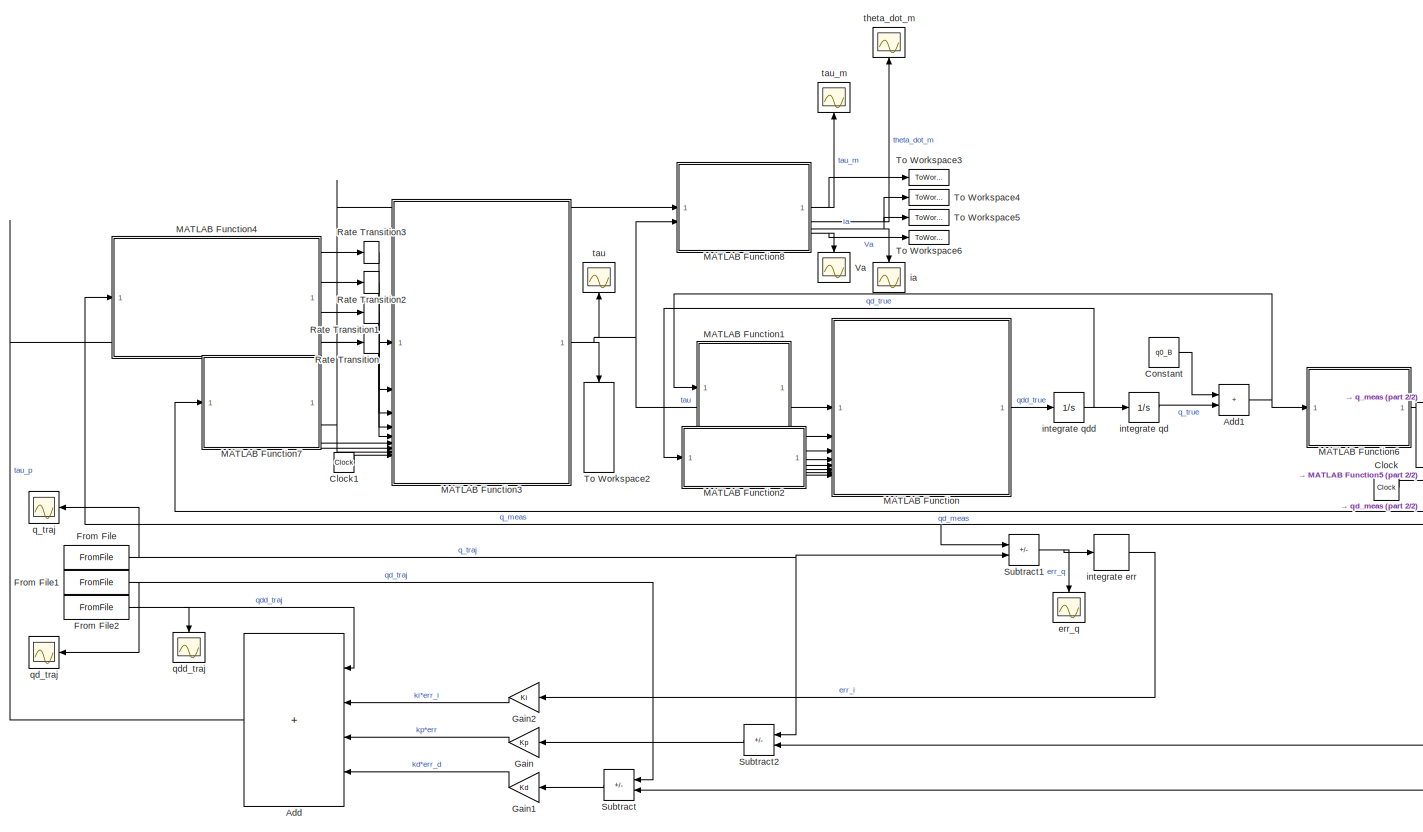
[diagram: root canvas - part 1/2, most of the canvas]
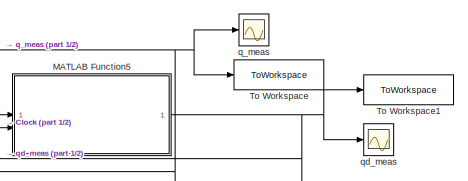
[diagram: root canvas - part 2/2, middle right region]
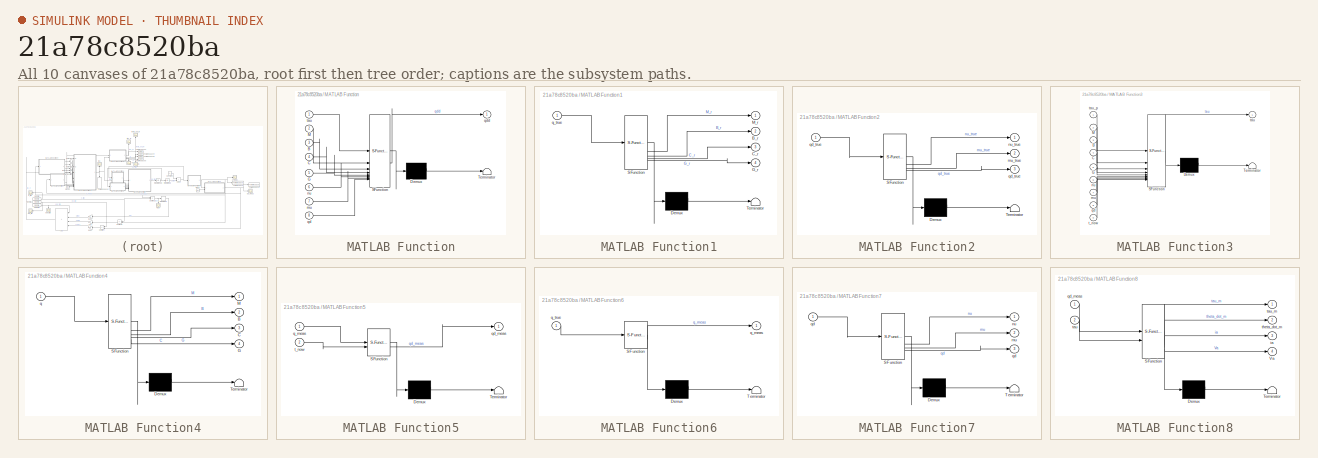
[diagram: thumbnail index - all 10 canvases of the model, root first then tree order]
MODEL slx_21a78c8520ba
KIND model
CONFIG AbsTol = auto
CONFIG EnableMultiTasking = off
CONFIG FixedStep = t_sim
CONFIG MaxStep = auto
CONFIG MinStep = auto
CONFIG RelTol = 1e-3
CONFIG SampleTimeConstraint = Unconstrained
CONFIG SolverName = ode4
CONFIG StartTime = T_in_sim_B
CONFIG StopTime = T_sim_B
WORKSPACE source: mxarray member
WORKSPACE A_c = [1 1 1 1 1]
WORKSPACE A_v = [0.146 0 0 0 0 0 0.146 0 0 0 0 0 ... (25 elements, 5x5)]
WORKSPACE DELTA = [0.00153398078789 0.00153398078789 0.00153398078789 0.00153398078789 0.00153398078789]
WORKSPACE K = 5
WORKSPACE Kd = [4 0 0 0 0 0 4 0 0 0 0 0 ... (25 elements, 5x5)]
WORKSPACE Ki = [28 0 0 0 0 0 28 0 0 0 0 0 ... (25 elements, 5x5)]
WORKSPACE Kp = [21 0 0 0 0 0 21 0 0 0 0 0 ... (25 elements, 5x5)]
WORKSPACE M_m = [0.54 0 0 0 0 0 0.54 0 0 0 0 0 ... (25 elements, 5x5)]
WORKSPACE Ra = [0.103 0.103 0.103 0.103 0.103]
WORKSPACE T_c = 0.01
WORKSPACE T_gt = 0.005
WORKSPACE T_in_sim_A = 0
WORKSPACE T_in_sim_B = 25.02
WORKSPACE T_moto_A = 9.56
WORKSPACE T_moto_B = 34.085
WORKSPACE T_s = 0.01
WORKSPACE T_sim_A = 25.015
WORKSPACE T_sim_B = 48.735
WORKSPACE T_u = 0.02
WORKSPACE f_c = 50
WORKSPACE f_gt = 200
WORKSPACE f_s = 100
WORKSPACE f_u = 50
WORKSPACE gear_ratio = [100 100 100 100 100]
WORKSPACE kd = 4
WORKSPACE ke = [0.0385 0.0385 0.0385 0.0385 0.0385]
WORKSPACE ki = 28
WORKSPACE km = [0.0385 0.0385 0.0385 0.0385 0.0385]
WORKSPACE kp = 21
WORKSPACE q0_A = [0 -2.4435 1.5708 1.5708 1.5708]
WORKSPACE q0_B = [3.82862160983e-16 -0.562806100915 2.41996424612 -0.534908886278 0.248547067871]
WORKSPACE qd0_A = [0 0 0 0 0]
WORKSPACE qd0_B = [0 0 0 0 0]
WORKSPACE qdd0_A = [2.20373308525e-17 0.108251684053 0.0488774168534 -0.121203420277 -0.0761081357875]
WORKSPACE qdd0_B = [-4.87408370682e-17 0.121203420277 -0.0531243011007 0.0781005207217 0.054950573486]
WORKSPACE t_LPF = 10
WORKSPACE t_const = 0.02
WORKSPACE t_fade = 0.5
WORKSPACE t_sim = 0.005
BLOCK [Sum] Add
  IconShape = rectangular
  Inputs = ++++
  NameLocation = top
BLOCK [Sum] Add1
  IconShape = rectangular
BLOCK [Clock] Clock
BLOCK [Clock] Clock1
BLOCK [Constant] Constant
  Value = q0_B
BLOCK [FromFile] From File
  FileName = q_trajB.mat
  SampleTime = T_gt
BLOCK [FromFile] From File1
  FileName = dq_trajB.mat
  SampleTime = T_gt
BLOCK [FromFile] From File2
  FileName = ddq_trajB.mat
  SampleTime = T_gt
BLOCK [Gain] Gain
  Gain = Kp
  Multiplication = Matrix(K*u) (u vector)
BLOCK [Gain] Gain1
  Gain = Kd
  Multiplication = Matrix(K*u) (u vector)
BLOCK [Gain] Gain2
  Gain = Ki
  Multiplication = Matrix(K*u) (u vector)
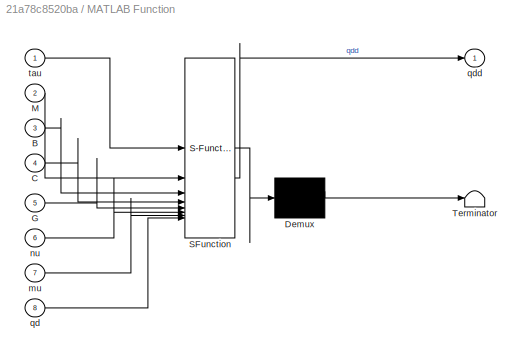
BLOCK [SubSystem] MATLAB Function
  ErrorFcn = Stateflow.Translate.translate
  PermitHierarchicalResolution = ExplicitOnly
  SFBlockType = MATLAB Function
  TreatAsAtomicUnit = on
BLOCK [Demux] MATLAB Function/ Demux 
  Outputs = 1
BLOCK [S-Function] MATLAB Function/ SFunction 
  EnableBusSupport = on
  FunctionName = sf_sfun
  Parameters = A_c,A_v,M_m
  PortCounts = [8 2]
  SFcnIsStateOwnerBlock = off
  SFunctionDeploymentMode = off
  Tag = Stateflow S-Function 2
BLOCK [Terminator] MATLAB Function/ Terminator 
BLOCK [Inport] MATLAB Function/B
  Port = 3
BLOCK [Inport] MATLAB Function/C
  Port = 4
BLOCK [Inport] MATLAB Function/G
  Port = 5
BLOCK [Inport] MATLAB Function/M
  Port = 2
BLOCK [Inport] MATLAB Function/mu
  Port = 7
BLOCK [Inport] MATLAB Function/nu
  Port = 6
BLOCK [Inport] MATLAB Function/qd
  Port = 8
BLOCK [Outport] MATLAB Function/qdd
BLOCK [Inport] MATLAB Function/tau
BLOCK [SubSystem] MATLAB Function1
  ErrorFcn = Stateflow.Translate.translate
  PermitHierarchicalResolution = ExplicitOnly
  SFBlockType = MATLAB Function
  TreatAsAtomicUnit = on
BLOCK [Demux] MATLAB Function1/ Demux 
  Outputs = 1
BLOCK [S-Function] MATLAB Function1/ SFunction 
  EnableBusSupport = on
  FunctionName = sf_sfun
  PortCounts = [1 5]
  SFcnIsStateOwnerBlock = off
  SFunctionDeploymentMode = off
  Tag = Stateflow S-Function 1
BLOCK [Terminator] MATLAB Function1/ Terminator 
BLOCK [Outport] MATLAB Function1/B_r
  Port = 2
BLOCK [Outport] MATLAB Function1/C_r
  Port = 3
BLOCK [Outport] MATLAB Function1/G_r
  Port = 4
BLOCK [Outport] MATLAB Function1/M_r
BLOCK [Inport] MATLAB Function1/q_true
BLOCK [SubSystem] MATLAB Function2
  ErrorFcn = Stateflow.Translate.translate
  PermitHierarchicalResolution = ExplicitOnly
  SFBlockType = MATLAB Function
  TreatAsAtomicUnit = on
BLOCK [Demux] MATLAB Function2/ Demux 
  Outputs = 1
BLOCK [S-Function] MATLAB Function2/ SFunction 
  EnableBusSupport = on
  FunctionName = sf_sfun
  PortCounts = [1 4]
  SFcnIsStateOwnerBlock = off
  SFunctionDeploymentMode = off
  Tag = Stateflow S-Function 3
BLOCK [Terminator] MATLAB Function2/ Terminator 
BLOCK [Outport] MATLAB Function2/mu_true
  Port = 2
BLOCK [Outport] MATLAB Function2/nu_true
BLOCK [Outport] MATLAB Function2/qd_true
  Port = 3
BLOCK [Inport] MATLAB Function2/qd_true 
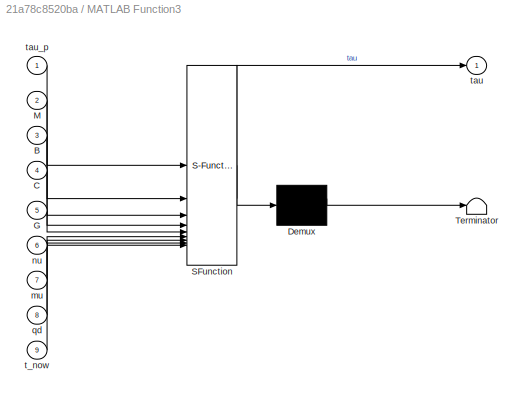
BLOCK [SubSystem] MATLAB Function3
  ErrorFcn = Stateflow.Translate.translate
  PermitHierarchicalResolution = ExplicitOnly
  SFBlockType = MATLAB Function
  SystemSampleTime = T_c
  TreatAsAtomicUnit = on
BLOCK [Demux] MATLAB Function3/ Demux 
  Outputs = 1
BLOCK [S-Function] MATLAB Function3/ SFunction 
  EnableBusSupport = on
  FunctionName = sf_sfun
  Parameters = A_c,A_v,M_m,T_moto_B
  PortCounts = [9 2]
  SFcnIsStateOwnerBlock = off
  SFunctionDeploymentMode = off
  Tag = Stateflow S-Function 4
BLOCK [Terminator] MATLAB Function3/ Terminator 
BLOCK [Inport] MATLAB Function3/B
  Port = 3
BLOCK [Inport] MATLAB Function3/C
  Port = 4
BLOCK [Inport] MATLAB Function3/G
  Port = 5
BLOCK [Inport] MATLAB Function3/M
  Port = 2
BLOCK [Inport] MATLAB Function3/mu
  Port = 7
BLOCK [Inport] MATLAB Function3/nu
  Port = 6
BLOCK [Inport] MATLAB Function3/qd
  Port = 8
BLOCK [Inport] MATLAB Function3/t_now
  Port = 9
BLOCK [Outport] MATLAB Function3/tau
BLOCK [Inport] MATLAB Function3/tau_p
BLOCK [SubSystem] MATLAB Function4
  ErrorFcn = Stateflow.Translate.translate
  PermitHierarchicalResolution = ExplicitOnly
  SFBlockType = MATLAB Function
  SystemSampleTime = T_u
  TreatAsAtomicUnit = on
BLOCK [Demux] MATLAB Function4/ Demux 
  Outputs = 1
BLOCK [S-Function] MATLAB Function4/ SFunction 
  EnableBusSupport = on
  FunctionName = sf_sfun
  PortCounts = [1 5]
  SFcnIsStateOwnerBlock = off
  SFunctionDeploymentMode = off
  Tag = Stateflow S-Function 5
BLOCK [Terminator] MATLAB Function4/ Terminator 
BLOCK [Outport] MATLAB Function4/B
  Port = 2
BLOCK [Outport] MATLAB Function4/C
  Port = 3
BLOCK [Outport] MATLAB Function4/G
  Port = 4
BLOCK [Outport] MATLAB Function4/M
BLOCK [Inport] MATLAB Function4/q
BLOCK [SubSystem] MATLAB Function5
  ErrorFcn = Stateflow.Translate.translate
  PermitHierarchicalResolution = ExplicitOnly
  SFBlockType = MATLAB Function
  TreatAsAtomicUnit = on
BLOCK [Demux] MATLAB Function5/ Demux 
  Outputs = 1
BLOCK [S-Function] MATLAB Function5/ SFunction 
  EnableBusSupport = on
  FunctionName = sf_sfun
  Parameters = K,T_moto_B,T_s,t_const,t_fade
  PortCounts = [2 2]
  SFcnIsStateOwnerBlock = off
  SFunctionDeploymentMode = off
  Tag = Stateflow S-Function 6
BLOCK [Terminator] MATLAB Function5/ Terminator 
BLOCK [Inport] MATLAB Function5/q_meas
BLOCK [Outport] MATLAB Function5/qd_meas
BLOCK [Inport] MATLAB Function5/t_now
  Port = 2
BLOCK [SubSystem] MATLAB Function6
  ErrorFcn = Stateflow.Translate.translate
  PermitHierarchicalResolution = ExplicitOnly
  SFBlockType = MATLAB Function
  SystemSampleTime = T_s
  TreatAsAtomicUnit = on
BLOCK [Demux] MATLAB Function6/ Demux 
  Outputs = 1
BLOCK [S-Function] MATLAB Function6/ SFunction 
  EnableBusSupport = on
  FunctionName = sf_sfun
  Parameters = DELTA,gear_ratio
  PortCounts = [1 2]
  SFcnIsStateOwnerBlock = off
  SFunctionDeploymentMode = off
  Tag = Stateflow S-Function 7
BLOCK [Terminator] MATLAB Function6/ Terminator 
BLOCK [Outport] MATLAB Function6/q_meas
BLOCK [Inport] MATLAB Function6/q_true
BLOCK [SubSystem] MATLAB Function7
  ErrorFcn = Stateflow.Translate.translate
  PermitHierarchicalResolution = ExplicitOnly
  SFBlockType = MATLAB Function
  TreatAsAtomicUnit = on
BLOCK [Demux] MATLAB Function7/ Demux 
  Outputs = 1
BLOCK [S-Function] MATLAB Function7/ SFunction 
  EnableBusSupport = on
  FunctionName = sf_sfun
  PortCounts = [1 4]
  SFcnIsStateOwnerBlock = off
  SFunctionDeploymentMode = off
  Tag = Stateflow S-Function 8
BLOCK [Terminator] MATLAB Function7/ Terminator 
BLOCK [Outport] MATLAB Function7/mu
  Port = 2
BLOCK [Outport] MATLAB Function7/nu
BLOCK [Outport] MATLAB Function7/qd
  Port = 3
BLOCK [Inport] MATLAB Function7/qd 
BLOCK [SubSystem] MATLAB Function8
  ErrorFcn = Stateflow.Translate.translate
  PermitHierarchicalResolution = ExplicitOnly
  SFBlockType = MATLAB Function
  TreatAsAtomicUnit = on
BLOCK [Demux] MATLAB Function8/ Demux 
  Outputs = 1
BLOCK [S-Function] MATLAB Function8/ SFunction 
  EnableBusSupport = on
  FunctionName = sf_sfun
  Parameters = Ra,gear_ratio,ke,km
  PortCounts = [2 5]
  SFcnIsStateOwnerBlock = off
  SFunctionDeploymentMode = off
  Tag = Stateflow S-Function 9
BLOCK [Terminator] MATLAB Function8/ Terminator 
BLOCK [Outport] MATLAB Function8/Va
  Port = 4
BLOCK [Outport] MATLAB Function8/ia
  Port = 3
BLOCK [Inport] MATLAB Function8/qd_meas
BLOCK [Inport] MATLAB Function8/tau
  Port = 2
BLOCK [Outport] MATLAB Function8/tau_m
BLOCK [Outport] MATLAB Function8/theta_dot_m
  Port = 2
BLOCK [RateTransition] Rate Transition
  OutPortSampleTime = T_c
BLOCK [RateTransition] Rate Transition1
  OutPortSampleTime = T_c
BLOCK [RateTransition] Rate Transition2
  OutPortSampleTime = T_c
BLOCK [RateTransition] Rate Transition3
  OutPortSampleTime = T_c
BLOCK [Sum] Subtract
  IconShape = rectangular
  Inputs = +-
BLOCK [Sum] Subtract1
  IconShape = rectangular
  Inputs = -+
  NameLocation = top
BLOCK [Sum] Subtract2
  IconShape = rectangular
  Inputs = +-
BLOCK [ToWorkspace] To Workspace
  FixptAsFi = on
  MaxDataPoints = inf
  SampleTime = -1
  SaveFormat = Timeseries
  VariableName = q_meas
BLOCK [ToWorkspace] To Workspace1
  FixptAsFi = on
  MaxDataPoints = inf
  SampleTime = -1
  SaveFormat = Timeseries
  VariableName = qd_meas
BLOCK [ToWorkspace] To Workspace2
  FixptAsFi = on
  MaxDataPoints = inf
  NameLocation = left
  SampleTime = -1
  SaveFormat = Timeseries
  VariableName = tau
BLOCK [ToWorkspace] To Workspace3
  FixptAsFi = on
  MaxDataPoints = inf
  SampleTime = -1
  SaveFormat = Timeseries
  VariableName = tau_m
BLOCK [ToWorkspace] To Workspace4
  FixptAsFi = on
  MaxDataPoints = inf
  SampleTime = -1
  SaveFormat = Timeseries
  VariableName = theta_dot_m
BLOCK [ToWorkspace] To Workspace5
  FixptAsFi = on
  MaxDataPoints = inf
  SampleTime = -1
  SaveFormat = Timeseries
  VariableName = ia
BLOCK [ToWorkspace] To Workspace6
  FixptAsFi = on
  MaxDataPoints = inf
  SampleTime = -1
  SaveFormat = Timeseries
  VariableName = Va
BLOCK [Scope] Va
  Floating = off
  NameLocation = left
  NumInputPorts = 1
  ScopeSpecificationString = Simulink.scopes.TimeScopeBlockCfg('CurrentConfiguration', extmgr.ConfigurationSet(extmgr.Configuration('Core','General UI',true),extmgr.Configuration('Core','Source UI',true),extmgr.Configuration('Sources','WiredSimulink',true,'DataLoggingVariableName','ScopeData1'),extmgr.Configuration('Visuals','Time Domain',true,'SerializedDisplays',{struct('MinYLimReal','-0.64404','MaxYLimReal','1.32576','YLab...<+1596ch>
BLOCK [Scope] err_q
  Floating = off
  NameLocation = left
  NumInputPorts = 1
  ScopeSpecificationString = Simulink.scopes.TimeScopeBlockCfg('CurrentConfiguration', extmgr.ConfigurationSet(extmgr.Configuration('Core','General UI',true),extmgr.Configuration('Core','Source UI',true),extmgr.Configuration('Sources','WiredSimulink',true,'DataLoggingVariableName','ScopeData5'),extmgr.Configuration('Visuals','Time Domain',true,'SerializedDisplays',{struct('MinYLimReal','-0.02749','MaxYLimReal','0.0475','YLabe...<+1793ch>
BLOCK [Scope] ia
  Floating = off
  NameLocation = left
  NumInputPorts = 1
  ScopeSpecificationString = Simulink.scopes.TimeScopeBlockCfg('CurrentConfiguration', extmgr.ConfigurationSet(extmgr.Configuration('Core','General UI',true),extmgr.Configuration('Core','Source UI',true),extmgr.Configuration('Sources','WiredSimulink',true,'DataLoggingVariableName','ScopeData2'),extmgr.Configuration('Visuals','Time Domain',true,'SerializedDisplays',{struct('MinYLimReal','-10.27227','MaxYLimReal','6.42242','YLa...<+1646ch>
BLOCK [DiscreteIntegrator] integrate err
  ICPrevOutput = DiscIntNeverNeededParam
  ICPrevScaledInput = DiscIntNeverNeededParam
  InitialConditionSetting = Auto
  SampleTime = T_s
BLOCK [Integrator] integrate qd
  InitialCondition = qd0_B
BLOCK [Integrator] integrate qdd
  InitialCondition = qdd0_B
BLOCK [Scope] q_meas
  Floating = off
  NumInputPorts = 1
  ScopeSpecificationString = Simulink.scopes.TimeScopeBlockCfg('CurrentConfiguration', extmgr.ConfigurationSet(extmgr.Configuration('Core','General UI',true),extmgr.Configuration('Core','Source UI',true),extmgr.Configuration('Sources','WiredSimulink',true),extmgr.Configuration('Visuals','Time Domain',true,'SerializedDisplays',{struct('MinYLimReal','-3.05454','MaxYLimReal','3.05454','YLabelReal','q [rad]','MinYLimMag','0.00000...<+1676ch>
BLOCK [Scope] q_traj
  Floating = off
  NumInputPorts = 1
  ScopeSpecificationString = Simulink.scopes.TimeScopeBlockCfg('CurrentConfiguration', extmgr.ConfigurationSet(extmgr.Configuration('Core','General UI',true),extmgr.Configuration('Core','Source UI',true),extmgr.Configuration('Sources','WiredSimulink',true,'DataLoggingVariableName','ScopeData2'),extmgr.Configuration('Visuals','Time Domain',true,'SerializedDisplays',{struct('MinYLimReal','-0.93565','MaxYLimReal','2.79281','YLab...<+1687ch>
BLOCK [Scope] qd_meas
  Floating = off
  NumInputPorts = 1
  ScopeSpecificationString = Simulink.scopes.TimeScopeBlockCfg('CurrentConfiguration', extmgr.ConfigurationSet(extmgr.Configuration('Core','General UI',true),extmgr.Configuration('Core','Source UI',true),extmgr.Configuration('Sources','WiredSimulink',true,'DataLoggingVariableName','ScopeData1'),extmgr.Configuration('Visuals','Time Domain',true,'SerializedDisplays',{struct('MinYLimReal','-0.46019','MaxYLimReal','0.37342','YLab...<+1703ch>
BLOCK [Scope] qd_traj
  Floating = off
  NumInputPorts = 1
  ScopeSpecificationString = Simulink.scopes.TimeScopeBlockCfg('CurrentConfiguration', extmgr.ConfigurationSet(extmgr.Configuration('Core','General UI',true),extmgr.Configuration('Core','Source UI',true),extmgr.Configuration('Sources','WiredSimulink',true,'DataLoggingVariableName','ScopeData3'),extmgr.Configuration('Visuals','Time Domain',true,'SerializedDisplays',{struct('MinYLimReal','-0.33','MaxYLimReal','0.3','YLabelReal'...<+1738ch>
BLOCK [Scope] qdd_traj
  Floating = off
  NameLocation = left
  NumInputPorts = 1
  ScopeSpecificationString = Simulink.scopes.TimeScopeBlockCfg('CurrentConfiguration', extmgr.ConfigurationSet(extmgr.Configuration('Core','General UI',true),extmgr.Configuration('Core','Source UI',true),extmgr.Configuration('Sources','WiredSimulink',true,'DataLoggingVariableName','ScopeData5'),extmgr.Configuration('Visuals','Time Domain',true,'SerializedDisplays',{struct('MinYLimReal','-0.1515','MaxYLimReal','0.1515','YLabel...<+1682ch>
BLOCK [Scope] tau
  Floating = off
  NameLocation = right
  NumInputPorts = 1
  ScopeSpecificationString = Simulink.scopes.TimeScopeBlockCfg('CurrentConfiguration', extmgr.ConfigurationSet(extmgr.Configuration('Core','General UI',true),extmgr.Configuration('Core','Source UI',true),extmgr.Configuration('Sources','WiredSimulink',true,'DataLoggingVariableName','ScopeData4'),extmgr.Configuration('Visuals','Time Domain',true,'SerializedDisplays',{struct('MinYLimReal','-19.78493','MaxYLimReal','12.46054','YL...<+1636ch>
BLOCK [Scope] tau_m
  Floating = off
  NameLocation = right
  NumInputPorts = 1
  ScopeSpecificationString = Simulink.scopes.TimeScopeBlockCfg('CurrentConfiguration', extmgr.ConfigurationSet(extmgr.Configuration('Core','General UI',true),extmgr.Configuration('Core','Source UI',true),extmgr.Configuration('Sources','WiredSimulink',true,'DataLoggingVariableName','ScopeData4'),extmgr.Configuration('Visuals','Time Domain',true,'SerializedDisplays',{struct('MinYLimReal','-0.19785','MaxYLimReal','0.12461','YLab...<+1764ch>
BLOCK [Scope] theta_dot_m
  Floating = off
  NameLocation = right
  NumInputPorts = 1
  ScopeSpecificationString = Simulink.scopes.TimeScopeBlockCfg('CurrentConfiguration', extmgr.ConfigurationSet(extmgr.Configuration('Core','General UI',true),extmgr.Configuration('Core','Source UI',true),extmgr.Configuration('Sources','WiredSimulink',true,'DataLoggingVariableName','ScopeData3'),extmgr.Configuration('Visuals','Time Domain',true,'SerializedDisplays',{struct('MinYLimReal','-19.57903','MaxYLimReal','35.76747','YL...<+1795ch>
NET Add1:1 -> MATLAB Function1:1, MATLAB Function6:1
LINE Add:1 -> MATLAB Function3:1
LINE Clock1:1 -> MATLAB Function3:9
LINE Clock:1 -> MATLAB Function5:2
LINE Constant:1 -> Add1:1
NET From File1:1 -> Subtract:1, qd_traj:1
NET From File2:1 -> Add:1, qdd_traj:1
NET From File:1 -> Subtract1:2, Subtract2:1, q_traj:1
LINE Gain1:1 -> Add:4
LINE Gain2:1 -> Add:2
LINE Gain:1 -> Add:3
LINE MATLAB Function1:1 -> MATLAB Function:2
LINE MATLAB Function1:2 -> MATLAB Function:3
LINE MATLAB Function1:3 -> MATLAB Function:4
LINE MATLAB Function1:4 -> MATLAB Function:5
LINE MATLAB Function2:1 -> MATLAB Function:6
LINE MATLAB Function2:2 -> MATLAB Function:7
LINE MATLAB Function2:3 -> MATLAB Function:8
NET MATLAB Function3:1 -> MATLAB Function8:2, MATLAB Function:1, To Workspace2:1, tau:1
LINE MATLAB Function4:1 -> Rate Transition3:1
LINE MATLAB Function4:2 -> Rate Transition2:1
LINE MATLAB Function4:3 -> Rate Transition1:1
LINE MATLAB Function4:4 -> Rate Transition:1
NET MATLAB Function5:1 -> MATLAB Function7:1, Subtract:2, To Workspace1:1, qd_meas:1
NET MATLAB Function6:1 -> MATLAB Function4:1, MATLAB Function5:1, Subtract1:1, Subtract2:2, To Workspace:1, q_meas:1
LINE MATLAB Function7:1 -> MATLAB Function3:6
LINE MATLAB Function7:2 -> MATLAB Function3:7
NET MATLAB Function7:3 -> MATLAB Function3:8, MATLAB Function8:1
NET MATLAB Function8:1 -> To Workspace3:1, tau_m:1
NET MATLAB Function8:2 -> To Workspace4:1, theta_dot_m:1
NET MATLAB Function8:3 -> To Workspace5:1, ia:1
NET MATLAB Function8:4 -> To Workspace6:1, Va:1
LINE MATLAB Function:1 -> integrate qdd:1
LINE Rate Transition1:1 -> MATLAB Function3:4
LINE Rate Transition2:1 -> MATLAB Function3:3
LINE Rate Transition3:1 -> MATLAB Function3:2
LINE Rate Transition:1 -> MATLAB Function3:5
NET Subtract1:1 -> err_q:1, integrate err:1
LINE Subtract2:1 -> Gain:1
LINE Subtract:1 -> Gain1:1
LINE integrate err:1 -> Gain2:1
LINE integrate qd:1 -> Add1:2
NET integrate qdd:1 -> MATLAB Function2:1, integrate qd:1
note: NET lines group one-source signal fan-out (src -> all destinations, sorted); 1:1 wires keep LINE
CHART MATLAB Function6 states=1 transitions=1
  STATE_LABEL 'eML_blk_kernel()'
  STATE_LABEL 'SCRIPT:\nfunction q_meas  = Encoders(q_true, DELTA, gear_ratio)\n\n    % Encoder assoluto: wrap -> quantize \n    \n    % Parametri dal base workspace / model workspace:\n    %   DELTA : [nx1] oppure scalar (step quantizzazione [rad])\n    \n    % ---- wrap q_true in [-pi, pi] ----\n    q_true = wrapTo2Pi(q_true);\n    % ---- trasforma in q motore\n    q_true = q_true .* gear_ratio;\n    \n    % ---- quantizza...<+249ch>'
CHART MATLAB Function7 states=1 transitions=1
  STATE_LABEL 'eML_blk_kernel()'
  STATE_LABEL 'SCRIPT:\nfunction [nu,mu,qd] = vel_vec(qd)\n%#codegen\nnu = cross_joint_velocity_vector(qd);    % 10x1\nmu = squared_joint_velocity_vector(qd);  % 5x1\nend\n'
CHART MATLAB Function8 states=1 transitions=1
  STATE_LABEL 'eML_blk_kernel()'
  STATE_LABEL 'SCRIPT:\nfunction [tau_m,theta_dot_m,ia,Va] = DC_motor(qd_meas,tau,km, ke, Ra, gear_ratio)\n%%% function che da modello dei DC Motor\n\n% caratteristiche di lavoro motore\ntau_m = tau ./ gear_ratio; % [N*m]\ntheta_dot_m = qd_meas .* gear_ratio; % [rad/s]\nia = tau_m ./ km; % [A]\nVa = Ra .* ia + ke .* theta_dot_m;\n\n\n'
CHART MATLAB Function1 states=1 transitions=1
  STATE_LABEL 'eML_blk_kernel()'
  STATE_LABEL 'SCRIPT:\nfunction [M_r,B_r,C_r,G_r] = Real_Arm(q_true)\n% M B C G dipendono da modello dinamico\nM_r = mass_matrix(q_true);\nB_r = cor_coeff_matrix(q_true);\nC_r = cent_coeff_matrix(q_true);\nG_r = gravity_vector_B(q_true);\n\nend\n'
CHART MATLAB Function states=1 transitions=1
  STATE_LABEL 'eML_blk_kernel()'
  STATE_LABEL 'SCRIPT:\nfunction qdd = Arm_dynamics(tau,M,B,C,G,nu,mu,qd, M_m, A_v, A_c)\n% tau(dipende da modello dinamica) (M, B, C, G , M_m , A_v , A_c simulano braccio reale)\nqdd = (M+M_m) \\ (tau - B*nu - C*mu - G - A_v*qd - A_c.*sign(qd));\nend\n\n'
CHART MATLAB Function2 states=1 transitions=1
  STATE_LABEL 'eML_blk_kernel()'
  STATE_LABEL 'SCRIPT:\nfunction [nu_true,mu_true,qd_true] = vel_vec(qd_true)\n%#codegen\nnu_true = cross_joint_velocity_vector(qd_true);    % 10x1\nmu_true = squared_joint_velocity_vector(qd_true);  % 5x1\nend\n'
CHART MATLAB Function3 states=1 transitions=1
  STATE_LABEL 'eML_blk_kernel()'
  STATE_LABEL 'SCRIPT:\nfunction tau = computed_tau(tau_p,M,B,C,G,nu,mu,qd, M_m, A_v, A_c,t_now, T_moto_B)\n\n\n% ignora attrito costante giunto 1 (in realta rimane immobile)\nA = [0;1;1;1;1];\n% ignora parte statica attrito dopo che manipolatore si ferma\nif t_now > T_moto_B\n    A = zeros(5,1);\nend\n\n% ricostruzione tau\ntau = (M+M_m)*tau_p + G + B*nu + C*mu + A_v*qd + A.*(A_c.* sign(qd));\n\nend'
CHART MATLAB Function4 states=1 transitions=1
  STATE_LABEL 'eML_blk_kernel()'
  STATE_LABEL 'SCRIPT:\nfunction [M,B,C,G] = Simulated_Arm(q)\n   \n    %%% function che in funzione delle variabili di giunto determina le\n    %%% quantità dinamiche matriciali presenti nella formulazione nello spazio\n    %%% di stato della dinamica del manipolatore. \n\n    % quantita dinamiche dipendenti da q\n    M = modified_mass_matrix(q);\n    B = modified_cor_coeff_matrix(q);\n    C = modified_cent_coeff_matrix(...<+49ch>'
CHART MATLAB Function5 states=1 transitions=1
  STATE_LABEL 'eML_blk_kernel()'
  STATE_LABEL 'SCRIPT:\nfunction qd_meas = finite_difference(q_meas, T_s, K, t_const, t_now, T_moto_B, t_fade)\n% q_meas: [n x 1] (assoluto quantizzato e già wrappato se serve)\n% Output: qd_meas [n x 1]\n\n\n% forza colonna (evita 1x5 vs 5x1)\nq_meas = q_meas(:);\nn = size(q_meas,1);\n\n% K almeno 3 (nota: K deve restare costante durante la simulazione,\n% altrimenti il buffer cambia dimensione)\nif nargin < 3 || isempty(K...<+1749ch>'
CHART  states=0 transitions=0
CHART  states=0 transitions=0
CHART  states=0 transitions=0
CHART  states=0 transitions=0
CHART  states=0 transitions=0
CHART  states=0 transitions=0
CHART  states=0 transitions=0
CHART  states=0 transitions=0
CHART  states=0 transitions=0
